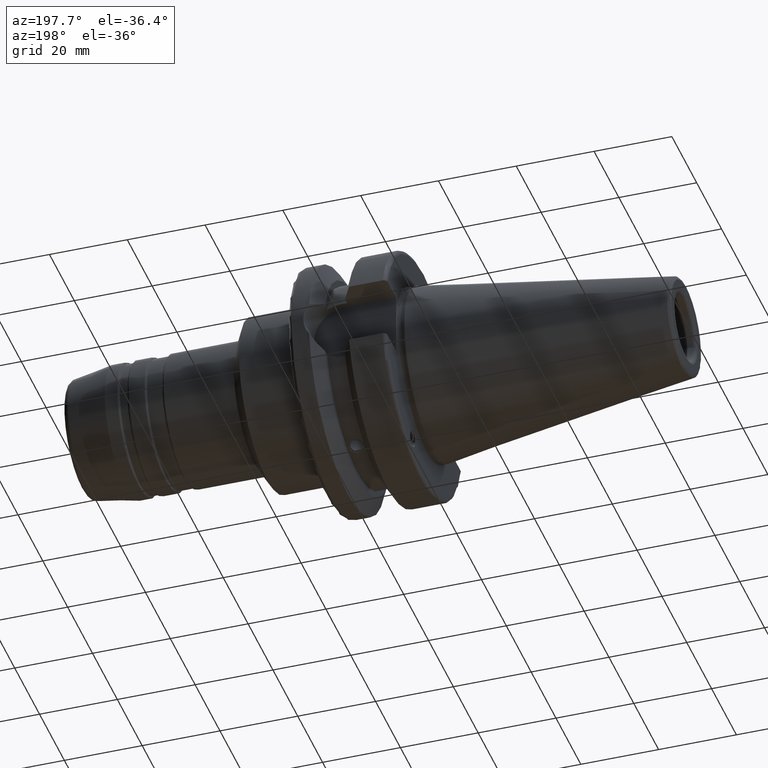
[diagram: clean part render]
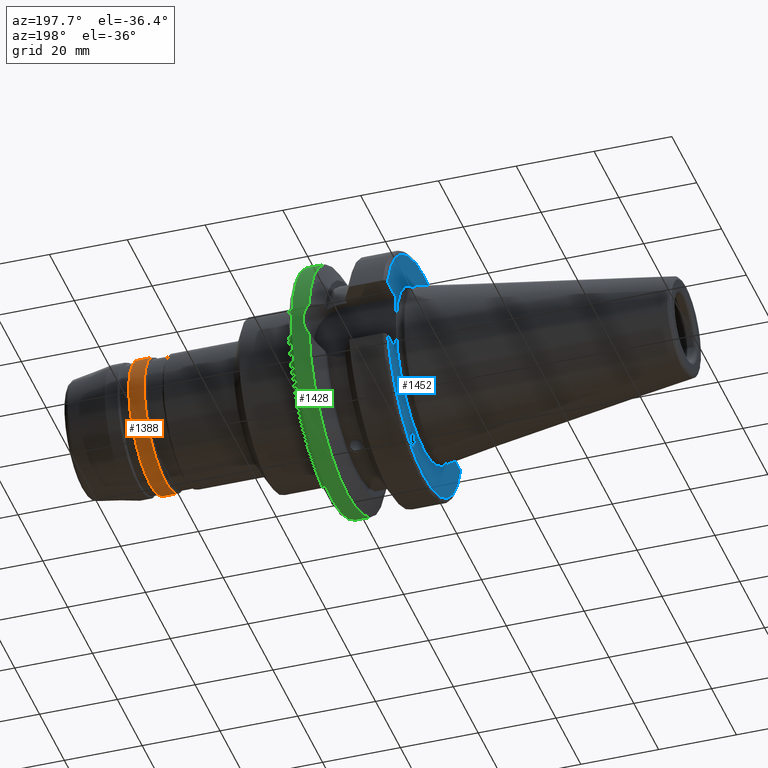
[diagram: same view with three faces highlighted in distinct colors, each labeled with its STEP entity id]
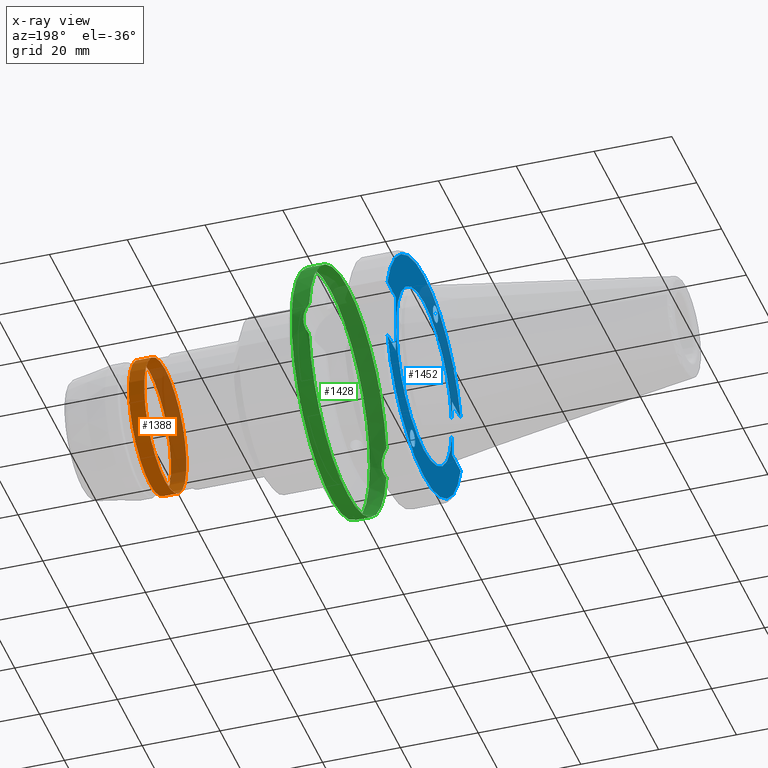
[diagram: x-ray of the same camera — body ghosted, the three highlighted faces saturated]
A machine part, auxiliary view with three faces highlighted in distinct colors.
The next image is the same camera in x-ray (body ghosted, the three faces saturated) — at least one of them is partly hidden behind the body in this view.
Their STEP definitions:

[orange] entity #1388 — the highlighted cylindrical surface (bore or boss wall) has radius 17 mm, axis along (1, 0, 0).
#124=FACE_OUTER_BOUND('',#213,.T.);
#213=EDGE_LOOP('',(#985,#986,#987,#988));
#336=LINE('',#2324,#407);
#407=VECTOR('',#1784,17.);
#492=CIRCLE('',#1524,17.);
#493=CIRCLE('',#1526,17.);
#588=VERTEX_POINT('',#2319);
#589=VERTEX_POINT('',#2323);
#739=EDGE_CURVE('',#588,#588,#492,.T.);
#740=EDGE_CURVE('',#588,#589,#336,.T.);
#741=EDGE_CURVE('',#589,#589,#493,.T.);
#985=ORIENTED_EDGE('',*,*,#739,.F.);
#986=ORIENTED_EDGE('',*,*,#740,.T.);
#987=ORIENTED_EDGE('',*,*,#741,.F.);
#988=ORIENTED_EDGE('',*,*,#740,.F.);
#1344=CYLINDRICAL_SURFACE('',#1525,17.);
#1388=ADVANCED_FACE('',(#124),#1344,.T.);
#1524=AXIS2_PLACEMENT_3D('',#2321,#1780,#1781);
#1525=AXIS2_PLACEMENT_3D('',#2322,#1782,#1783);
#1526=AXIS2_PLACEMENT_3D('',#2325,#1785,#1786);
#1780=DIRECTION('center_axis',(1.,0.,0.));
#1781=DIRECTION('ref_axis',(0.,1.22464679914735E-16,1.));
#1782=DIRECTION('center_axis',(1.,0.,0.));
#1783=DIRECTION('ref_axis',(0.,0.,-1.));
#1784=DIRECTION('',(-1.,0.,0.));
#1785=DIRECTION('center_axis',(-1.,0.,0.));
#1786=DIRECTION('ref_axis',(0.,1.22464679914735E-16,1.));
#2319=CARTESIAN_POINT('',(72.4803847577293,-2.0818995585505E-15,17.));
#2321=CARTESIAN_POINT('Origin',(72.4803847577293,0.,0.));
#2322=CARTESIAN_POINT('Origin',(70.5,0.,0.));
#2323=CARTESIAN_POINT('',(68.5196152422707,-2.0818995585505E-15,17.));
#2324=CARTESIAN_POINT('',(70.5,-2.0818995585505E-15,17.));
#2325=CARTESIAN_POINT('Origin',(68.5196152422707,0.,0.));

[blue] entity #1452 — the highlighted planar face has unit normal (-1, 0, 0).
#27=ELLIPSE('',#1583,2.44154917752291,2.);
#36=ELLIPSE('',#1606,2.44154917752291,2.);
#55=PLANE('',#1670);
#104=FACE_BOUND('',#289,.T.);
#105=FACE_BOUND('',#290,.T.);
#106=FACE_BOUND('',#291,.T.);
#188=FACE_OUTER_BOUND('',#288,.T.);
#288=EDGE_LOOP('',(#1295,#1296,#1297,#1298,#1299,#1300,#1301,#1302));
#289=EDGE_LOOP('',(#1303));
#290=EDGE_LOOP('',(#1304));
#291=EDGE_LOOP('',(#1305));
#366=LINE('',#2626,#437);
#370=LINE('',#2634,#441);
#373=LINE('',#2654,#444);
#384=LINE('',#2754,#455);
#387=LINE('',#2775,#458);
#389=LINE('',#2778,#460);
#437=VECTOR('',#1990,10.);
#441=VECTOR('',#1996,10.);
#444=VECTOR('',#2001,10.);
#455=VECTOR('',#2056,10.);
#458=VECTOR('',#2061,10.);
#460=VECTOR('',#2065,10.);
#536=CIRCLE('',#1634,30.5);
#555=CIRCLE('',#1669,22.5);
#556=CIRCLE('',#1671,30.5);
#618=VERTEX_POINT('',#2458);
#633=VERTEX_POINT('',#2539);
#651=VERTEX_POINT('',#2614);
#652=VERTEX_POINT('',#2625);
#654=VERTEX_POINT('',#2631);
#655=VERTEX_POINT('',#2633);
#670=VERTEX_POINT('',#2714);
#677=VERTEX_POINT('',#2751);
#678=VERTEX_POINT('',#2753);
#682=VERTEX_POINT('',#2774);
#696=VERTEX_POINT('',#2826);
#789=EDGE_CURVE('',#618,#618,#27,.T.);
#812=EDGE_CURVE('',#633,#633,#36,.T.);
#833=EDGE_CURVE('',#652,#651,#366,.T.);
#837=EDGE_CURVE('',#655,#654,#370,.T.);
#842=EDGE_CURVE('',#654,#652,#373,.T.);
#862=EDGE_CURVE('',#655,#670,#536,.T.);
#872=EDGE_CURVE('',#678,#677,#384,.T.);
#877=EDGE_CURVE('',#682,#670,#387,.T.);
#879=EDGE_CURVE('',#677,#682,#389,.T.);
#903=EDGE_CURVE('',#696,#696,#555,.T.);
#904=EDGE_CURVE('',#678,#651,#556,.T.);
#1295=ORIENTED_EDGE('',*,*,#833,.T.);
#1296=ORIENTED_EDGE('',*,*,#904,.F.);
#1297=ORIENTED_EDGE('',*,*,#872,.T.);
#1298=ORIENTED_EDGE('',*,*,#879,.T.);
#1299=ORIENTED_EDGE('',*,*,#877,.T.);
#1300=ORIENTED_EDGE('',*,*,#862,.F.);
#1301=ORIENTED_EDGE('',*,*,#837,.T.);
#1302=ORIENTED_EDGE('',*,*,#842,.T.);
#1303=ORIENTED_EDGE('',*,*,#789,.T.);
#1304=ORIENTED_EDGE('',*,*,#812,.T.);
#1305=ORIENTED_EDGE('',*,*,#903,.T.);
#1452=ADVANCED_FACE('',(#188,#104,#105,#106),#55,.T.);
#1583=AXIS2_PLACEMENT_3D('',#2460,#1912,#1913);
#1606=AXIS2_PLACEMENT_3D('',#2541,#1965,#1966);
#1634=AXIS2_PLACEMENT_3D('',#2715,#2043,#2044);
#1669=AXIS2_PLACEMENT_3D('',#2828,#2130,#2131);
#1670=AXIS2_PLACEMENT_3D('',#2829,#2132,#2133);
#1671=AXIS2_PLACEMENT_3D('',#2830,#2134,#2135);
#1912=DIRECTION('center_axis',(1.,0.,0.));
#1913=DIRECTION('ref_axis',(5.68400912649004E-17,-0.342020143325671,0.939692620785908));
#1965=DIRECTION('center_axis',(1.,0.,0.));
#1966=DIRECTION('ref_axis',(5.68400912649004E-17,0.342020143325671,-0.939692620785908));
#1990=DIRECTION('',(0.,-1.,0.));
#1996=DIRECTION('',(0.,1.,0.));
#2001=DIRECTION('',(0.,0.,1.));
#2043=DIRECTION('center_axis',(1.,0.,0.));
#2044=DIRECTION('ref_axis',(0.,0.,-1.));
#2056=DIRECTION('',(0.,-1.,0.));
#2061=DIRECTION('',(0.,1.,0.));
#2065=DIRECTION('',(0.,0.,-1.));
#2130=DIRECTION('center_axis',(1.,0.,0.));
#2131=DIRECTION('ref_axis',(0.,0.,-1.));
#2132=DIRECTION('center_axis',(-1.,0.,0.));
#2133=DIRECTION('ref_axis',(0.,0.,1.));
#2134=DIRECTION('center_axis',(1.,0.,0.));
#2135=DIRECTION('ref_axis',(0.,0.,-1.));
#2458=CARTESIAN_POINT('',(1.99999999999999,-8.39948487015999,23.0773950158154));
#2460=CARTESIAN_POINT('Origin',(1.99999999999999,-9.23454386979305,25.3717007612195));
#2539=CARTESIAN_POINT('',(1.99999999999999,8.39948487015999,-23.0773950158154));
#2541=CARTESIAN_POINT('Origin',(1.99999999999999,9.23454386979305,-25.3717007612195));
#2614=CARTESIAN_POINT('',(1.99999999999999,-29.4184890842477,8.05));
#2625=CARTESIAN_POINT('',(1.99999999999999,-22.6,8.05));
#2626=CARTESIAN_POINT('',(1.99999999999999,3.95,8.05));
#2631=CARTESIAN_POINT('',(1.99999999999999,-22.6,-8.05));
#2633=CARTESIAN_POINT('',(1.99999999999999,-29.4184890842477,-8.05));
#2634=CARTESIAN_POINT('',(1.99999999999999,3.95,-8.05));
#2654=CARTESIAN_POINT('',(1.99999999999999,-22.6,0.));
#2714=CARTESIAN_POINT('',(1.99999999999999,29.4184890842477,-8.05));
#2715=CARTESIAN_POINT('Origin',(1.99999999999999,0.,0.));
#2751=CARTESIAN_POINT('',(1.99999999999999,22.6,8.05));
#2753=CARTESIAN_POINT('',(1.99999999999999,29.4184890842477,8.05));
#2754=CARTESIAN_POINT('',(1.99999999999999,26.55,8.05));
#2774=CARTESIAN_POINT('',(1.99999999999999,22.6,-8.05));
#2775=CARTESIAN_POINT('',(1.99999999999999,26.55,-8.05));
#2778=CARTESIAN_POINT('',(1.99999999999999,22.6,0.));
#2826=CARTESIAN_POINT('',(2.,-2.75545529808154E-15,22.5));
#2828=CARTESIAN_POINT('Origin',(2.,0.,0.));
#2829=CARTESIAN_POINT('Origin',(1.99999999999999,30.5,0.));
#2830=CARTESIAN_POINT('Origin',(1.99999999999999,0.,0.));

[green] entity #1428 — the highlighted cylindrical surface (bore or boss wall) has radius 31.5 mm, axis along (1, 0, 0).
#164=FACE_OUTER_BOUND('',#261,.T.);
#261=EDGE_LOOP('',(#1174,#1175,#1176,#1177,#1178,#1179,#1180,#1181,#1182));
#312=B_SPLINE_CURVE_WITH_KNOTS('',3,(#2569,#2570,#2571,#2572,#2573,#2574),
 .UNSPECIFIED.,.F.,.F.,(4,2,4),(1.21877751840372,1.52344857393281,1.67526011710938),
 .UNSPECIFIED.);
#313=B_SPLINE_CURVE_WITH_KNOTS('',3,(#2576,#2577,#2578,#2579,#2580,#2581),
 .UNSPECIFIED.,.F.,.F.,(4,2,4),(0.762294919698051,0.914106462874623,1.21877751840372),
 .UNSPECIFIED.);
#318=B_SPLINE_CURVE_WITH_KNOTS('',3,(#2663,#2664,#2665,#2666,#2667,#2668,
#2669,#2670,#2671,#2672),.UNSPECIFIED.,.F.,.F.,(4,2,2,2,4),(3.19984995650548,
3.35166149968206,3.65633255521115,3.96100361074024,4.11281515391681),
 .UNSPECIFIED.);
#374=LINE('',#2659,#445);
#445=VECTOR('',#2006,31.5);
#526=CIRCLE('',#1617,31.5);
#527=CIRCLE('',#1618,31.5);
#528=CIRCLE('',#1619,31.5);
#529=CIRCLE('',#1620,31.5);
#639=VERTEX_POINT('',#2561);
#640=VERTEX_POINT('',#2568);
#641=VERTEX_POINT('',#2575);
#659=VERTEX_POINT('',#2656);
#660=VERTEX_POINT('',#2657);
#661=VERTEX_POINT('',#2660);
#662=VERTEX_POINT('',#2662);
#820=EDGE_CURVE('',#640,#639,#312,.T.);
#821=EDGE_CURVE('',#641,#640,#313,.T.);
#843=EDGE_CURVE('',#659,#660,#526,.T.);
#844=EDGE_CURVE('',#659,#640,#374,.T.);
#845=EDGE_CURVE('',#639,#661,#527,.T.);
#846=EDGE_CURVE('',#661,#662,#318,.T.);
#847=EDGE_CURVE('',#662,#641,#528,.T.);
#848=EDGE_CURVE('',#660,#659,#529,.T.);
#1174=ORIENTED_EDGE('',*,*,#843,.F.);
#1175=ORIENTED_EDGE('',*,*,#844,.T.);
#1176=ORIENTED_EDGE('',*,*,#820,.T.);
#1177=ORIENTED_EDGE('',*,*,#845,.T.);
#1178=ORIENTED_EDGE('',*,*,#846,.T.);
#1179=ORIENTED_EDGE('',*,*,#847,.T.);
#1180=ORIENTED_EDGE('',*,*,#821,.T.);
#1181=ORIENTED_EDGE('',*,*,#844,.F.);
#1182=ORIENTED_EDGE('',*,*,#848,.F.);
#1363=CYLINDRICAL_SURFACE('',#1616,31.5);
#1428=ADVANCED_FACE('',(#164),#1363,.T.);
#1616=AXIS2_PLACEMENT_3D('',#2655,#2002,#2003);
#1617=AXIS2_PLACEMENT_3D('',#2658,#2004,#2005);
#1618=AXIS2_PLACEMENT_3D('',#2661,#2007,#2008);
#1619=AXIS2_PLACEMENT_3D('',#2673,#2009,#2010);
#1620=AXIS2_PLACEMENT_3D('',#2674,#2011,#2012);
#2002=DIRECTION('center_axis',(1.,0.,0.));
#2003=DIRECTION('ref_axis',(0.,1.,0.));
#2004=DIRECTION('center_axis',(1.,0.,0.));
#2005=DIRECTION('ref_axis',(0.,0.,-1.));
#2006=DIRECTION('',(-1.,0.,0.));
#2007=DIRECTION('center_axis',(1.,0.,0.));
#2008=DIRECTION('ref_axis',(0.,0.,-1.));
#2009=DIRECTION('center_axis',(1.,0.,0.));
#2010=DIRECTION('ref_axis',(0.,0.,-1.));
#2011=DIRECTION('center_axis',(1.,0.,0.));
#2012=DIRECTION('ref_axis',(0.,0.,-1.));
#2561=CARTESIAN_POINT('',(21.6309636926618,-31.1782420264945,-4.4907932637046));
#2568=CARTESIAN_POINT('',(23.,-31.5,-1.51248507442265E-15));
#2569=CARTESIAN_POINT('Ctrl Pts',(23.,-31.5,8.32667268468867E-16));
#2570=CARTESIAN_POINT('Ctrl Pts',(23.,-31.5,-1.01557018509698));
#2571=CARTESIAN_POINT('Ctrl Pts',(22.7961189876535,-31.445974204441,-2.09580170425552));
#2572=CARTESIAN_POINT('Ctrl Pts',(22.1796133812044,-31.2997625705024,-3.58065358198869));
#2573=CARTESIAN_POINT('Ctrl Pts',(21.92482980253,-31.2412125047166,-4.05360796141051));
#2574=CARTESIAN_POINT('Ctrl Pts',(21.6309636926618,-31.1782420264945,-4.4907932637046));
#2575=CARTESIAN_POINT('',(21.6309636926618,-31.1782420264945,4.4907932637046));
#2576=CARTESIAN_POINT('Ctrl Pts',(21.6309636926618,-31.1782420264945,4.4907932637046));
#2577=CARTESIAN_POINT('Ctrl Pts',(21.92482980253,-31.2412125047166,4.05360796141051));
#2578=CARTESIAN_POINT('Ctrl Pts',(22.1796133812044,-31.2997625705024,3.58065358198869));
#2579=CARTESIAN_POINT('Ctrl Pts',(22.7961189876535,-31.445974204441,2.09580170425552));
#2580=CARTESIAN_POINT('Ctrl Pts',(23.,-31.5,1.01557018509698));
#2581=CARTESIAN_POINT('Ctrl Pts',(23.,-31.5,-2.77555756156289E-16));
#2655=CARTESIAN_POINT('Origin',(23.8154818463309,0.,0.));
#2656=CARTESIAN_POINT('',(26.,-31.5,-3.85763741731416E-15));
#2657=CARTESIAN_POINT('',(26.,-3.85763741731416E-15,31.5));
#2658=CARTESIAN_POINT('Origin',(26.,0.,0.));
#2659=CARTESIAN_POINT('',(23.8154818463309,-31.5,-3.85763741731416E-15));
#2660=CARTESIAN_POINT('',(21.6309636926618,31.1782420264945,-4.4907932637046));
#2661=CARTESIAN_POINT('Origin',(21.6309636926618,0.,0.));
#2662=CARTESIAN_POINT('',(21.6309636926618,31.1782420264945,4.4907932637046));
#2663=CARTESIAN_POINT('Ctrl Pts',(21.6309636926618,31.1782420264945,-4.4907932637046));
#2664=CARTESIAN_POINT('Ctrl Pts',(21.92482980253,31.2412125047166,-4.05360796141051));
#2665=CARTESIAN_POINT('Ctrl Pts',(22.1796133812044,31.2997625705024,-3.58065358198869));
#2666=CARTESIAN_POINT('Ctrl Pts',(22.7961189876535,31.445974204441,-2.09580170425552));
#2667=CARTESIAN_POINT('Ctrl Pts',(23.,31.5,-1.01557018509698));
#2668=CARTESIAN_POINT('Ctrl Pts',(23.,31.5,1.01557018509698));
#2669=CARTESIAN_POINT('Ctrl Pts',(22.7961189876535,31.445974204441,2.09580170425552));
#2670=CARTESIAN_POINT('Ctrl Pts',(22.1796133812044,31.2997625705024,3.58065358198869));
#2671=CARTESIAN_POINT('Ctrl Pts',(21.92482980253,31.2412125047166,4.05360796141051));
#2672=CARTESIAN_POINT('Ctrl Pts',(21.6309636926618,31.1782420264945,4.4907932637046));
#2673=CARTESIAN_POINT('Origin',(21.6309636926618,0.,0.));
#2674=CARTESIAN_POINT('Origin',(26.,0.,0.));